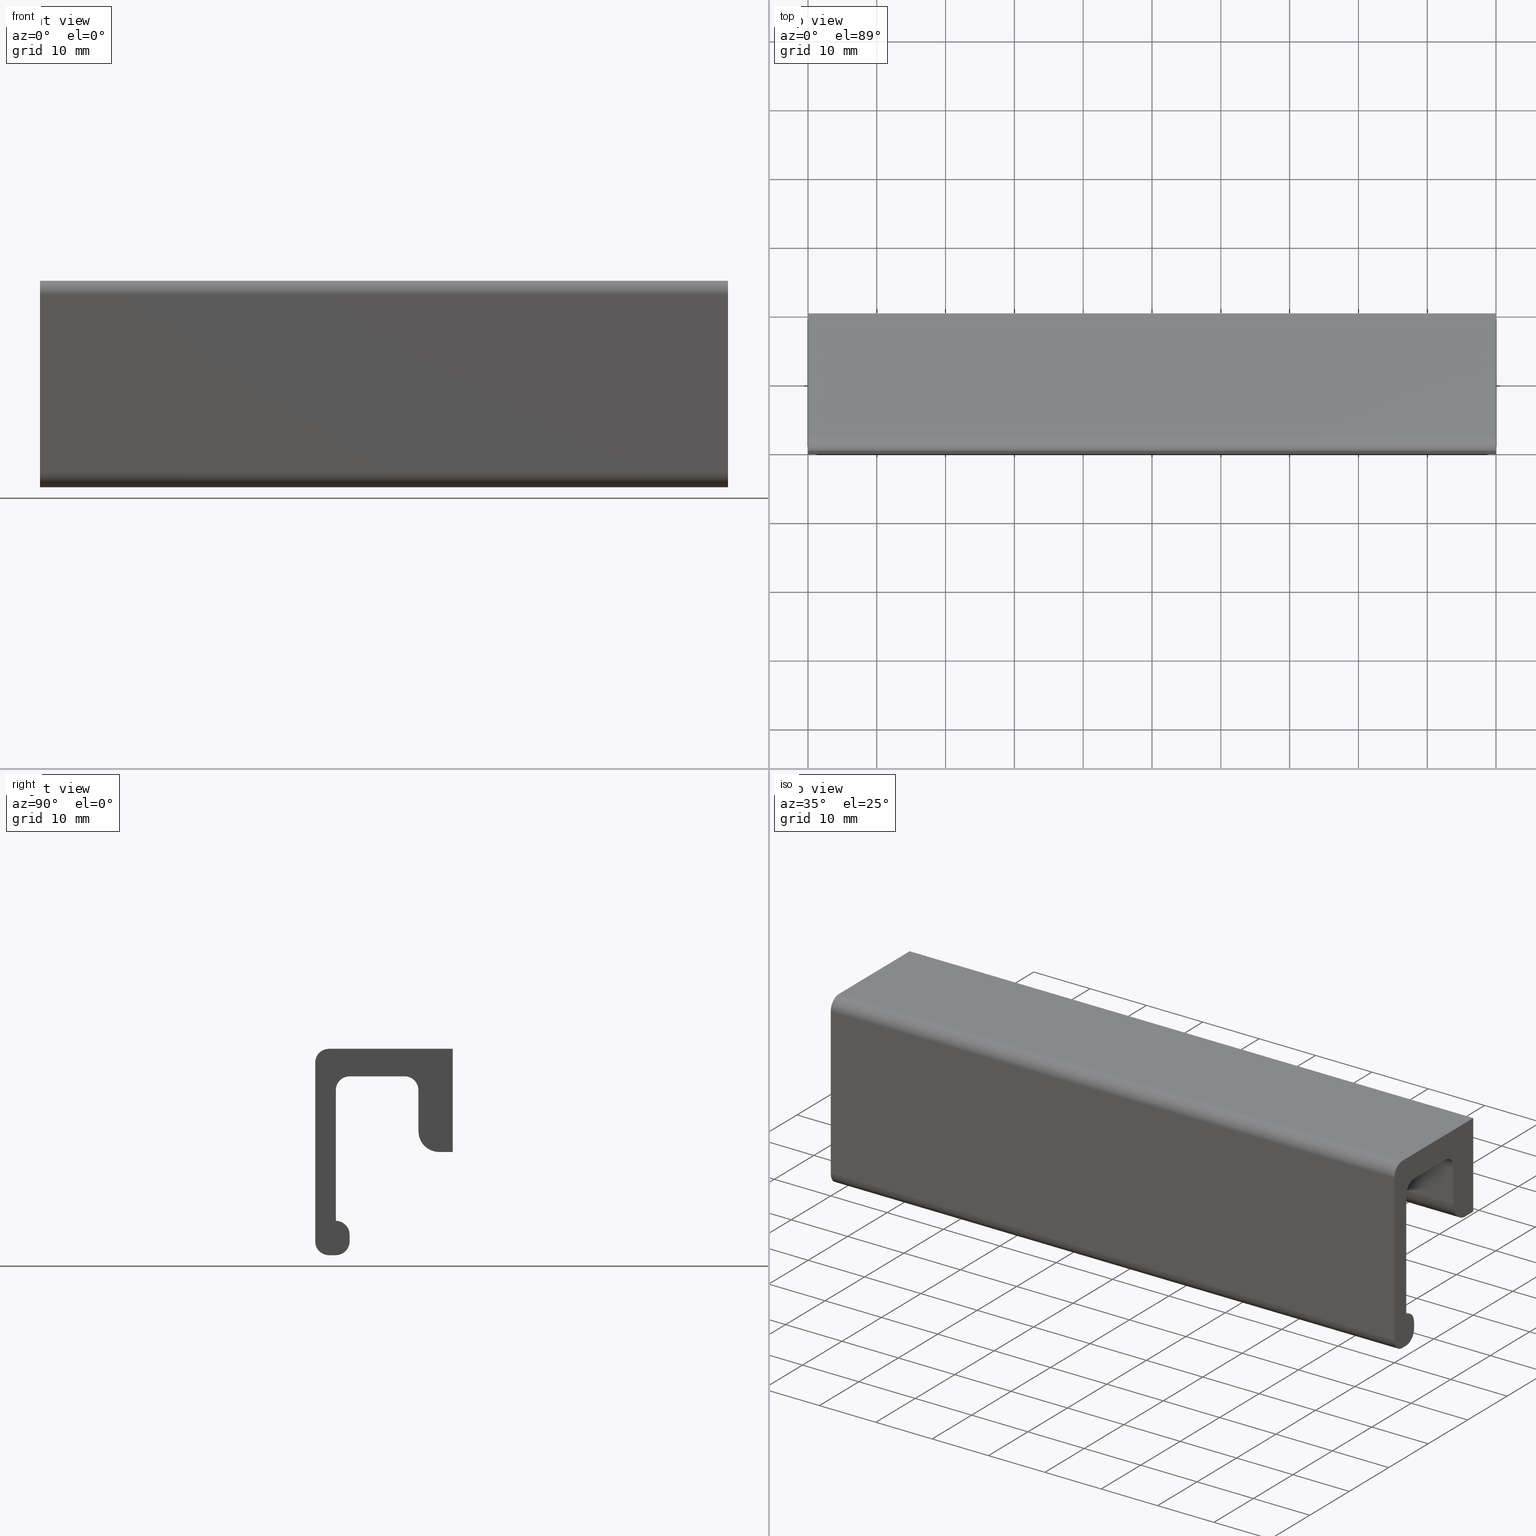
[diagram: canonical four-view strip — front | top / right | iso, engineering-drawing reading convention]
A machine part, canonical four-view strip (front | top / right | iso — engineering-drawing reading convention). The complete STEP part file that produces these views, byte-faithful:
ISO-10303-21;
HEADER;
/****************************************************************
 * Generated by software with PDE/Lib inside                    *
 * PDElib Version 4.4.1-0003, patched  Thursday August 19 11:58 *
 * International Technegroup Inc. (www.iti-oh.com)              *
 ****************************************************************/
FILE_DESCRIPTION((''),'2;1');
FILE_NAME('','2005-10-07T12:31:36',(''),(''),'','CADfix','');
FILE_SCHEMA(('AUTOMOTIVE_DESIGN'));
ENDSEC;
DATA;
#5=APPLICATION_CONTEXT('automotive design');
#6=APPLICATION_PROTOCOL_DEFINITION('Draft International Standard','automotive_design',1998,#5);
#7=PRODUCT_CONTEXT('None',#5,'mechanical');
#8=PRODUCT('pull','','None',(#7));
#9=PRODUCT_RELATED_PRODUCT_CATEGORY('part','description',(#8));
#10=PRODUCT_DEFINITION_FORMATION('None','None',#8);
#11=PRODUCT_DEFINITION_CONTEXT('part definition',#5,'design');
#12=PRODUCT_DEFINITION('None','None',#10,#11);
#18=(NAMED_UNIT(*)PLANE_ANGLE_UNIT()SI_UNIT($,.RADIAN.));
#19=DIMENSIONAL_EXPONENTS(0.0,0.0,0.0,0.0,0.0,0.0,0.0);
#20=PLANE_ANGLE_MEASURE_WITH_UNIT(PLANE_ANGLE_MEASURE(0.017453292500000),#18);
#24=(CONVERSION_BASED_UNIT('DEGREE',#20)NAMED_UNIT(#19)PLANE_ANGLE_UNIT());
#28=(NAMED_UNIT(*)SI_UNIT($,.STERADIAN.)SOLID_ANGLE_UNIT());
#32=(LENGTH_UNIT()NAMED_UNIT(*)SI_UNIT(.MILLI.,.METRE.));
#34=UNCERTAINTY_MEASURE_WITH_UNIT(LENGTH_MEASURE(0.001000000000000),#32,'DISTANCE_ACCURACY_VALUE','');
#36=(GEOMETRIC_REPRESENTATION_CONTEXT(3)GLOBAL_UNCERTAINTY_ASSIGNED_CONTEXT((#34))GLOBAL_UNIT_ASSIGNED_CONTEXT((#24,#28,#32))REPRESENTATION_CONTEXT('None','None'));
#37=AXIS2_PLACEMENT_3D('',#38,#39,#40);
#38=CARTESIAN_POINT('',(0.0,0.0,0.0));
#39=DIRECTION('',(0.0,0.0,1.0));
#40=DIRECTION('',(1.0,0.0,0.0));
#41=ADVANCED_BREP_SHAPE_REPRESENTATION('',(#37,#1104),#36);
#42=PRODUCT_DEFINITION_SHAPE('','',#12);
#43=SHAPE_DEFINITION_REPRESENTATION(#42,#41);
#44=CARTESIAN_POINT('',(17.507706665667179,-5.125000000000124,-8.803852260680387));
#45=CARTESIAN_POINT('',(17.703854404986789,-5.125000000000124,-6.311558926347567));
#46=CARTESIAN_POINT('',(20.196147739319610,-5.125000000000124,-6.507706665667181));
#47=CARTESIAN_POINT('',(22.688441073652434,-5.125000000000124,-6.703854404986793));
#48=CARTESIAN_POINT('',(22.492293334332821,-5.125000000000124,-9.196147739319613));
#49=CARTESIAN_POINT('',(17.507706665667179,0.128125000000003,-8.803852260680387));
#50=CARTESIAN_POINT('',(17.703854404986789,0.128125000000003,-6.311558926347567));
#51=CARTESIAN_POINT('',(20.196147739319610,0.128125000000003,-6.507706665667181));
#52=CARTESIAN_POINT('',(22.688441073652434,0.128125000000003,-6.703854404986793));
#53=CARTESIAN_POINT('',(22.492293334332821,0.128125000000003,-9.196147739319613));
#61=(BOUNDED_SURFACE()B_SPLINE_SURFACE(2,1,((#44,#49),(#45,#50),(#46,#51),(#47,#52),(#48,#53)),.UNSPECIFIED.,.F.,.F.,.U.)B_SPLINE_SURFACE_WITH_KNOTS((3,2,3),(2,2),(0.0,4.142135623730949,8.284271247461899),(0.0,5.253125000000129),.UNSPECIFIED.)GEOMETRIC_REPRESENTATION_ITEM()RATIONAL_B_SPLINE_SURFACE(((1.0,1.0),(0.707106781186548,0.707106781186548),(1.0,1.0),(0.707106781186548,0.707106781186548),(1.0,1.0)))REPRESENTATION_ITEM('')SURFACE());
#62=CARTESIAN_POINT('',(20.0,0.0,-6.499999999999999));
#63=VERTEX_POINT('',#62);
#64=CARTESIAN_POINT('',(17.507706665690229,-2.220446E-016,-8.803852260387494));
#65=VERTEX_POINT('',#64);
#66=CARTESIAN_POINT('',(20.0,0.0,-6.499999999999999));
#67=CARTESIAN_POINT('',(17.689023771399334,0.0,-6.499999999999999));
#68=CARTESIAN_POINT('',(17.507706665690232,-2.220446E-016,-8.803852260387494));
#76=(BOUNDED_CURVE()B_SPLINE_CURVE(2,(#66,#67,#68),.UNSPECIFIED.,.F.,.U.)B_SPLINE_CURVE_WITH_KNOTS((3,3),(0.0,0.236331300592475),.UNSPECIFIED.)CURVE()GEOMETRIC_REPRESENTATION_ITEM()RATIONAL_B_SPLINE_CURVE((1.0,0.723120658652401,0.969723356087730))REPRESENTATION_ITEM(''));
#77=EDGE_CURVE('',#63,#65,#76,.T.);
#78=ORIENTED_EDGE('',*,*,#77,.F.);
#79=CARTESIAN_POINT('',(22.492293334309771,-2.220446E-016,-9.196147739612508));
#80=VERTEX_POINT('',#79);
#81=CARTESIAN_POINT('',(22.492293334309768,-2.220446E-016,-9.196147739612508));
#82=CARTESIAN_POINT('',(22.500000000000004,0.0,-9.098225267813428));
#83=CARTESIAN_POINT('',(22.500000000000000,0.0,-9.0));
#84=CARTESIAN_POINT('',(22.500000000000000,0.0,-6.499999999999999));
#85=CARTESIAN_POINT('',(20.0,0.0,-6.499999999999999));
#93=(BOUNDED_CURVE()B_SPLINE_CURVE(2,(#81,#82,#83,#84,#85),.UNSPECIFIED.,.F.,.U.)B_SPLINE_CURVE_WITH_KNOTS((3,2,3),(0.736331300592475,0.750000000000000,1.0),.UNSPECIFIED.)CURVE()GEOMETRIC_REPRESENTATION_ITEM()RATIONAL_B_SPLINE_CURVE((0.969723356087730,0.983986122534146,1.0,0.707106781186548,1.0))REPRESENTATION_ITEM(''));
#94=EDGE_CURVE('',#80,#63,#93,.T.);
#95=ORIENTED_EDGE('',*,*,#94,.F.);
#96=CARTESIAN_POINT('',(22.492293334309771,-5.000000000000120,-9.196147739612506));
#97=VERTEX_POINT('',#96);
#98=CARTESIAN_POINT('',(22.492293334309771,-5.000000000000120,-9.196147739612506));
#99=CARTESIAN_POINT('',(22.492293334309771,-2.220446E-016,-9.196147739612508));
#100=QUASI_UNIFORM_CURVE('',1,(#98,#99),.UNSPECIFIED.,.F.,.U.);
#101=EDGE_CURVE('',#97,#80,#100,.T.);
#102=ORIENTED_EDGE('',*,*,#101,.F.);
#103=CARTESIAN_POINT('',(20.0,-5.000000000000120,-6.499999999999999));
#104=VERTEX_POINT('',#103);
#105=CARTESIAN_POINT('',(22.492293334309771,-5.000000000000120,-9.196147739612506));
#106=CARTESIAN_POINT('',(22.500000000000000,-5.000000000000120,-9.098225267813426));
#107=CARTESIAN_POINT('',(22.500000000000000,-5.000000000000120,-9.0));
#108=CARTESIAN_POINT('',(22.500000000000000,-5.000000000000121,-6.499999999999999));
#109=CARTESIAN_POINT('',(20.0,-5.000000000000120,-6.499999999999999));
#117=(BOUNDED_CURVE()B_SPLINE_CURVE(2,(#105,#106,#107,#108,#109),.UNSPECIFIED.,.F.,.U.)B_SPLINE_CURVE_WITH_KNOTS((3,2,3),(0.736331300592475,0.750000000000000,1.0),.UNSPECIFIED.)CURVE()GEOMETRIC_REPRESENTATION_ITEM()RATIONAL_B_SPLINE_CURVE((0.969723356087730,0.983986122534146,1.0,0.707106781186548,1.0))REPRESENTATION_ITEM(''));
#118=EDGE_CURVE('',#97,#104,#117,.T.);
#119=ORIENTED_EDGE('',*,*,#118,.T.);
#120=CARTESIAN_POINT('',(17.507706665690240,-5.000000000000120,-8.803852260387494));
#121=VERTEX_POINT('',#120);
#122=CARTESIAN_POINT('',(20.0,-5.000000000000120,-6.499999999999999));
#123=CARTESIAN_POINT('',(17.689023771399341,-5.000000000000122,-6.499999999999999));
#124=CARTESIAN_POINT('',(17.507706665690236,-5.000000000000120,-8.803852260387494));
#132=(BOUNDED_CURVE()B_SPLINE_CURVE(2,(#122,#123,#124),.UNSPECIFIED.,.F.,.U.)B_SPLINE_CURVE_WITH_KNOTS((3,3),(0.0,0.236331300592475),.UNSPECIFIED.)CURVE()GEOMETRIC_REPRESENTATION_ITEM()RATIONAL_B_SPLINE_CURVE((1.0,0.723120658652401,0.969723356087730))REPRESENTATION_ITEM(''));
#133=EDGE_CURVE('',#104,#121,#132,.T.);
#134=ORIENTED_EDGE('',*,*,#133,.T.);
#135=CARTESIAN_POINT('',(17.507706665690240,-5.000000000000120,-8.803852260387494));
#136=CARTESIAN_POINT('',(17.507706665690229,-2.220446E-016,-8.803852260387494));
#137=QUASI_UNIFORM_CURVE('',1,(#135,#136),.UNSPECIFIED.,.F.,.U.);
#138=EDGE_CURVE('',#121,#65,#137,.T.);
#139=ORIENTED_EDGE('',*,*,#138,.T.);
#140=EDGE_LOOP('',(#78,#95,#102,#119,#134,#139));
#141=FACE_OUTER_BOUND('',#140,.T.);
#142=ADVANCED_FACE('',(#141),#61,.F.);
#143=CARTESIAN_POINT('',(22.492293334332821,-5.125000000000124,-9.196147739319613));
#144=CARTESIAN_POINT('',(22.296145595013208,-5.125000000000124,-11.688441073652434));
#145=CARTESIAN_POINT('',(19.803852260680390,-5.125000000000124,-11.492293334332819));
#146=CARTESIAN_POINT('',(17.311558926347576,-5.125000000000124,-11.296145595013206));
#147=CARTESIAN_POINT('',(17.507706665667179,-5.125000000000124,-8.803852260680387));
#148=CARTESIAN_POINT('',(22.492293334332821,0.128125000000003,-9.196147739319613));
#149=CARTESIAN_POINT('',(22.296145595013208,0.128125000000003,-11.688441073652434));
#150=CARTESIAN_POINT('',(19.803852260680390,0.128125000000003,-11.492293334332819));
#151=CARTESIAN_POINT('',(17.311558926347576,0.128125000000003,-11.296145595013206));
#152=CARTESIAN_POINT('',(17.507706665667179,0.128125000000003,-8.803852260680387));
#160=(BOUNDED_SURFACE()B_SPLINE_SURFACE(2,1,((#143,#148),(#144,#149),(#145,#150),(#146,#151),(#147,#152)),.UNSPECIFIED.,.F.,.F.,.U.)B_SPLINE_SURFACE_WITH_KNOTS((3,2,3),(2,2),(0.0,4.142135623730953,8.284271247461906),(0.0,5.253125000000129),.UNSPECIFIED.)GEOMETRIC_REPRESENTATION_ITEM()RATIONAL_B_SPLINE_SURFACE(((1.0,1.0),(0.707106781186548,0.707106781186548),(1.0,1.0),(0.707106781186548,0.707106781186548),(1.0,1.0)))REPRESENTATION_ITEM('')SURFACE());
#161=CARTESIAN_POINT('',(20.0,0.0,-11.500000000000000));
#162=VERTEX_POINT('',#161);
#163=CARTESIAN_POINT('',(17.507706665690236,-2.220446E-016,-8.803852260387494));
#164=CARTESIAN_POINT('',(17.500000000000000,0.0,-8.901774732186572));
#165=CARTESIAN_POINT('',(17.500000000000000,0.0,-9.0));
#166=CARTESIAN_POINT('',(17.499999999999996,0.0,-11.500000000000000));
#167=CARTESIAN_POINT('',(20.0,0.0,-11.500000000000000));
#175=(BOUNDED_CURVE()B_SPLINE_CURVE(2,(#163,#164,#165,#166,#167),.UNSPECIFIED.,.F.,.U.)B_SPLINE_CURVE_WITH_KNOTS((3,2,3),(0.236331300592475,0.250000000000000,0.500000000000000),.UNSPECIFIED.)CURVE()GEOMETRIC_REPRESENTATION_ITEM()RATIONAL_B_SPLINE_CURVE((0.969723356087730,0.983986122534146,1.0,0.707106781186548,1.0))REPRESENTATION_ITEM(''));
#176=EDGE_CURVE('',#65,#162,#175,.T.);
#177=ORIENTED_EDGE('',*,*,#176,.F.);
#178=ORIENTED_EDGE('',*,*,#138,.F.);
#179=CARTESIAN_POINT('',(20.0,-5.000000000000120,-11.500000000000000));
#180=VERTEX_POINT('',#179);
#181=CARTESIAN_POINT('',(17.507706665690232,-5.000000000000120,-8.803852260387494));
#182=CARTESIAN_POINT('',(17.500000000000004,-5.000000000000121,-8.901774732186572));
#183=CARTESIAN_POINT('',(17.500000000000000,-5.000000000000120,-9.0));
#184=CARTESIAN_POINT('',(17.499999999999996,-5.000000000000121,-11.500000000000000));
#185=CARTESIAN_POINT('',(20.0,-5.000000000000120,-11.500000000000000));
#193=(BOUNDED_CURVE()B_SPLINE_CURVE(2,(#181,#182,#183,#184,#185),.UNSPECIFIED.,.F.,.U.)B_SPLINE_CURVE_WITH_KNOTS((3,2,3),(0.236331300592475,0.250000000000000,0.500000000000000),.UNSPECIFIED.)CURVE()GEOMETRIC_REPRESENTATION_ITEM()RATIONAL_B_SPLINE_CURVE((0.969723356087730,0.983986122534146,1.0,0.707106781186548,1.0))REPRESENTATION_ITEM(''));
#194=EDGE_CURVE('',#121,#180,#193,.T.);
#195=ORIENTED_EDGE('',*,*,#194,.T.);
#196=CARTESIAN_POINT('',(20.0,-5.000000000000120,-11.500000000000000));
#197=CARTESIAN_POINT('',(22.310976228600680,-5.000000000000121,-11.499999999999998));
#198=CARTESIAN_POINT('',(22.492293334309764,-5.000000000000120,-9.196147739612506));
#206=(BOUNDED_CURVE()B_SPLINE_CURVE(2,(#196,#197,#198),.UNSPECIFIED.,.F.,.U.)B_SPLINE_CURVE_WITH_KNOTS((3,3),(0.500000000000000,0.736331300592476),.UNSPECIFIED.)CURVE()GEOMETRIC_REPRESENTATION_ITEM()RATIONAL_B_SPLINE_CURVE((1.0,0.723120658652400,0.969723356087732))REPRESENTATION_ITEM(''));
#207=EDGE_CURVE('',#180,#97,#206,.T.);
#208=ORIENTED_EDGE('',*,*,#207,.T.);
#209=ORIENTED_EDGE('',*,*,#101,.T.);
#210=CARTESIAN_POINT('',(20.0,0.0,-11.500000000000000));
#211=CARTESIAN_POINT('',(22.310976228600680,0.0,-11.499999999999998));
#212=CARTESIAN_POINT('',(22.492293334309764,-2.220446E-016,-9.196147739612508));
#220=(BOUNDED_CURVE()B_SPLINE_CURVE(2,(#210,#211,#212),.UNSPECIFIED.,.F.,.U.)B_SPLINE_CURVE_WITH_KNOTS((3,3),(0.500000000000000,0.736331300592476),.UNSPECIFIED.)CURVE()GEOMETRIC_REPRESENTATION_ITEM()RATIONAL_B_SPLINE_CURVE((1.0,0.723120658652400,0.969723356087732))REPRESENTATION_ITEM(''));
#221=EDGE_CURVE('',#162,#80,#220,.T.);
#222=ORIENTED_EDGE('',*,*,#221,.F.);
#223=EDGE_LOOP('',(#177,#178,#195,#208,#209,#222));
#224=FACE_OUTER_BOUND('',#223,.T.);
#225=ADVANCED_FACE('',(#224),#160,.F.);
#226=CARTESIAN_POINT('',(77.507706665667186,-5.125000000000124,-8.803852260680387));
#227=CARTESIAN_POINT('',(77.703854404986799,-5.125000000000124,-6.311558926347567));
#228=CARTESIAN_POINT('',(80.196147739319613,-5.125000000000124,-6.507706665667181));
#229=CARTESIAN_POINT('',(82.688441073652427,-5.125000000000124,-6.703854404986793));
#230=CARTESIAN_POINT('',(82.492293334332814,-5.125000000000124,-9.196147739319613));
#231=CARTESIAN_POINT('',(77.507706665667186,0.128125000000003,-8.803852260680387));
#232=CARTESIAN_POINT('',(77.703854404986799,0.128125000000003,-6.311558926347567));
#233=CARTESIAN_POINT('',(80.196147739319613,0.128125000000003,-6.507706665667181));
#234=CARTESIAN_POINT('',(82.688441073652427,0.128125000000003,-6.703854404986793));
#235=CARTESIAN_POINT('',(82.492293334332814,0.128125000000003,-9.196147739319613));
#243=(BOUNDED_SURFACE()B_SPLINE_SURFACE(2,1,((#226,#231),(#227,#232),(#228,#233),(#229,#234),(#230,#235)),.UNSPECIFIED.,.F.,.F.,.U.)B_SPLINE_SURFACE_WITH_KNOTS((3,2,3),(2,2),(0.0,4.142135623730946,8.284271247461891),(0.0,5.253125000000129),.UNSPECIFIED.)GEOMETRIC_REPRESENTATION_ITEM()RATIONAL_B_SPLINE_SURFACE(((1.0,1.0),(0.707106781186548,0.707106781186548),(1.0,1.0),(0.707106781186548,0.707106781186548),(1.0,1.0)))REPRESENTATION_ITEM('')SURFACE());
#244=CARTESIAN_POINT('',(80.0,0.0,-6.499999999999999));
#245=VERTEX_POINT('',#244);
#246=CARTESIAN_POINT('',(77.507706665690236,-2.220446E-016,-8.803852260387492));
#247=VERTEX_POINT('',#246);
#248=CARTESIAN_POINT('',(80.0,0.0,-6.499999999999999));
#249=CARTESIAN_POINT('',(77.689023771399334,0.0,-6.499999999999998));
#250=CARTESIAN_POINT('',(77.507706665690236,-2.220446E-016,-8.803852260387492));
#258=(BOUNDED_CURVE()B_SPLINE_CURVE(2,(#248,#249,#250),.UNSPECIFIED.,.F.,.U.)B_SPLINE_CURVE_WITH_KNOTS((3,3),(0.0,0.236331300592475),.UNSPECIFIED.)CURVE()GEOMETRIC_REPRESENTATION_ITEM()RATIONAL_B_SPLINE_CURVE((1.0,0.723120658652402,0.969723356087730))REPRESENTATION_ITEM(''));
#259=EDGE_CURVE('',#245,#247,#258,.T.);
#260=ORIENTED_EDGE('',*,*,#259,.F.);
#261=CARTESIAN_POINT('',(82.492293334309764,-2.220446E-016,-9.196147739612508));
#262=VERTEX_POINT('',#261);
#263=CARTESIAN_POINT('',(82.492293334309764,-2.220446E-016,-9.196147739612508));
#264=CARTESIAN_POINT('',(82.500000000000000,0.0,-9.098225267813429));
#265=CARTESIAN_POINT('',(82.500000000000000,0.0,-9.0));
#266=CARTESIAN_POINT('',(82.500000000000000,0.0,-6.499999999999999));
#267=CARTESIAN_POINT('',(80.0,0.0,-6.499999999999999));
#275=(BOUNDED_CURVE()B_SPLINE_CURVE(2,(#263,#264,#265,#266,#267),.UNSPECIFIED.,.F.,.U.)B_SPLINE_CURVE_WITH_KNOTS((3,2,3),(0.736331300592475,0.750000000000000,1.0),.UNSPECIFIED.)CURVE()GEOMETRIC_REPRESENTATION_ITEM()RATIONAL_B_SPLINE_CURVE((0.969723356087730,0.983986122534146,1.0,0.707106781186548,1.0))REPRESENTATION_ITEM(''));
#276=EDGE_CURVE('',#262,#245,#275,.T.);
#277=ORIENTED_EDGE('',*,*,#276,.F.);
#278=CARTESIAN_POINT('',(82.492293334309764,-5.000000000000120,-9.196147739612506));
#279=VERTEX_POINT('',#278);
#280=CARTESIAN_POINT('',(82.492293334309764,-5.000000000000120,-9.196147739612506));
#281=CARTESIAN_POINT('',(82.492293334309764,-2.220446E-016,-9.196147739612508));
#282=QUASI_UNIFORM_CURVE('',1,(#280,#281),.UNSPECIFIED.,.F.,.U.);
#283=EDGE_CURVE('',#279,#262,#282,.T.);
#284=ORIENTED_EDGE('',*,*,#283,.F.);
#285=CARTESIAN_POINT('',(80.0,-5.000000000000120,-6.499999999999999));
#286=VERTEX_POINT('',#285);
#287=CARTESIAN_POINT('',(82.492293334309764,-5.000000000000120,-9.196147739612506));
#288=CARTESIAN_POINT('',(82.500000000000000,-5.000000000000120,-9.098225267813426));
#289=CARTESIAN_POINT('',(82.500000000000000,-5.000000000000120,-9.0));
#290=CARTESIAN_POINT('',(82.500000000000000,-5.000000000000121,-6.499999999999999));
#291=CARTESIAN_POINT('',(80.0,-5.000000000000120,-6.499999999999999));
#299=(BOUNDED_CURVE()B_SPLINE_CURVE(2,(#287,#288,#289,#290,#291),.UNSPECIFIED.,.F.,.U.)B_SPLINE_CURVE_WITH_KNOTS((3,2,3),(0.736331300592475,0.750000000000000,1.0),.UNSPECIFIED.)CURVE()GEOMETRIC_REPRESENTATION_ITEM()RATIONAL_B_SPLINE_CURVE((0.969723356087730,0.983986122534146,1.0,0.707106781186548,1.0))REPRESENTATION_ITEM(''));
#300=EDGE_CURVE('',#279,#286,#299,.T.);
#301=ORIENTED_EDGE('',*,*,#300,.T.);
#302=CARTESIAN_POINT('',(77.507706665690222,-5.000000000000120,-8.803852260387494));
#303=VERTEX_POINT('',#302);
#304=CARTESIAN_POINT('',(80.0,-5.000000000000120,-6.499999999999999));
#305=CARTESIAN_POINT('',(77.689023771399320,-5.000000000000120,-6.499999999999999));
#306=CARTESIAN_POINT('',(77.507706665690222,-5.000000000000120,-8.803852260387494));
#314=(BOUNDED_CURVE()B_SPLINE_CURVE(2,(#304,#305,#306),.UNSPECIFIED.,.F.,.U.)B_SPLINE_CURVE_WITH_KNOTS((3,3),(0.0,0.236331300592475),.UNSPECIFIED.)CURVE()GEOMETRIC_REPRESENTATION_ITEM()RATIONAL_B_SPLINE_CURVE((1.0,0.723120658652401,0.969723356087730))REPRESENTATION_ITEM(''));
#315=EDGE_CURVE('',#286,#303,#314,.T.);
#316=ORIENTED_EDGE('',*,*,#315,.T.);
#317=CARTESIAN_POINT('',(77.507706665690222,-5.000000000000120,-8.803852260387494));
#318=CARTESIAN_POINT('',(77.507706665690236,-2.220446E-016,-8.803852260387492));
#319=QUASI_UNIFORM_CURVE('',1,(#317,#318),.UNSPECIFIED.,.F.,.U.);
#320=EDGE_CURVE('',#303,#247,#319,.T.);
#321=ORIENTED_EDGE('',*,*,#320,.T.);
#322=EDGE_LOOP('',(#260,#277,#284,#301,#316,#321));
#323=FACE_OUTER_BOUND('',#322,.T.);
#324=ADVANCED_FACE('',(#323),#243,.F.);
#325=CARTESIAN_POINT('',(82.492293334332814,-5.125000000000124,-9.196147739319613));
#326=CARTESIAN_POINT('',(82.296145595013201,-5.125000000000124,-11.688441073652434));
#327=CARTESIAN_POINT('',(79.803852260680387,-5.125000000000124,-11.492293334332819));
#328=CARTESIAN_POINT('',(77.311558926347573,-5.125000000000124,-11.296145595013206));
#329=CARTESIAN_POINT('',(77.507706665667186,-5.125000000000124,-8.803852260680387));
#330=CARTESIAN_POINT('',(82.492293334332814,0.128125000000003,-9.196147739319613));
#331=CARTESIAN_POINT('',(82.296145595013201,0.128125000000003,-11.688441073652434));
#332=CARTESIAN_POINT('',(79.803852260680387,0.128125000000003,-11.492293334332819));
#333=CARTESIAN_POINT('',(77.311558926347573,0.128125000000003,-11.296145595013206));
#334=CARTESIAN_POINT('',(77.507706665667186,0.128125000000003,-8.803852260680387));
#342=(BOUNDED_SURFACE()B_SPLINE_SURFACE(2,1,((#325,#330),(#326,#331),(#327,#332),(#328,#333),(#329,#334)),.UNSPECIFIED.,.F.,.F.,.U.)B_SPLINE_SURFACE_WITH_KNOTS((3,2,3),(2,2),(0.0,4.142135623730948,8.284271247461895),(0.0,5.253125000000129),.UNSPECIFIED.)GEOMETRIC_REPRESENTATION_ITEM()RATIONAL_B_SPLINE_SURFACE(((1.0,1.0),(0.707106781186548,0.707106781186548),(1.0,1.0),(0.707106781186548,0.707106781186548),(1.0,1.0)))REPRESENTATION_ITEM('')SURFACE());
#343=CARTESIAN_POINT('',(80.0,0.0,-11.500000000000000));
#344=VERTEX_POINT('',#343);
#345=CARTESIAN_POINT('',(77.507706665690236,-2.220446E-016,-8.803852260387492));
#346=CARTESIAN_POINT('',(77.500000000000000,0.0,-8.901774732186572));
#347=CARTESIAN_POINT('',(77.500000000000000,0.0,-9.0));
#348=CARTESIAN_POINT('',(77.500000000000014,0.0,-11.500000000000000));
#349=CARTESIAN_POINT('',(80.0,0.0,-11.500000000000000));
#357=(BOUNDED_CURVE()B_SPLINE_CURVE(2,(#345,#346,#347,#348,#349),.UNSPECIFIED.,.F.,.U.)B_SPLINE_CURVE_WITH_KNOTS((3,2,3),(0.236331300592475,0.250000000000000,0.500000000000000),.UNSPECIFIED.)CURVE()GEOMETRIC_REPRESENTATION_ITEM()RATIONAL_B_SPLINE_CURVE((0.969723356087730,0.983986122534146,1.0,0.707106781186548,1.0))REPRESENTATION_ITEM(''));
#358=EDGE_CURVE('',#247,#344,#357,.T.);
#359=ORIENTED_EDGE('',*,*,#358,.F.);
#360=ORIENTED_EDGE('',*,*,#320,.F.);
#361=CARTESIAN_POINT('',(80.0,-5.000000000000120,-11.500000000000000));
#362=VERTEX_POINT('',#361);
#363=CARTESIAN_POINT('',(77.507706665690222,-5.000000000000120,-8.803852260387494));
#364=CARTESIAN_POINT('',(77.500000000000000,-5.000000000000120,-8.901774732186572));
#365=CARTESIAN_POINT('',(77.500000000000000,-5.000000000000120,-9.0));
#366=CARTESIAN_POINT('',(77.500000000000014,-5.000000000000121,-11.500000000000000));
#367=CARTESIAN_POINT('',(80.0,-5.000000000000120,-11.500000000000000));
#375=(BOUNDED_CURVE()B_SPLINE_CURVE(2,(#363,#364,#365,#366,#367),.UNSPECIFIED.,.F.,.U.)B_SPLINE_CURVE_WITH_KNOTS((3,2,3),(0.236331300592475,0.250000000000000,0.500000000000000),.UNSPECIFIED.)CURVE()GEOMETRIC_REPRESENTATION_ITEM()RATIONAL_B_SPLINE_CURVE((0.969723356087730,0.983986122534146,1.0,0.707106781186548,1.0))REPRESENTATION_ITEM(''));
#376=EDGE_CURVE('',#303,#362,#375,.T.);
#377=ORIENTED_EDGE('',*,*,#376,.T.);
#378=CARTESIAN_POINT('',(80.0,-5.000000000000120,-11.500000000000000));
#379=CARTESIAN_POINT('',(82.310976228600694,-5.000000000000121,-11.499999999999998));
#380=CARTESIAN_POINT('',(82.492293334309764,-5.000000000000120,-9.196147739612506));
#388=(BOUNDED_CURVE()B_SPLINE_CURVE(2,(#378,#379,#380),.UNSPECIFIED.,.F.,.U.)B_SPLINE_CURVE_WITH_KNOTS((3,3),(0.500000000000000,0.736331300592476),.UNSPECIFIED.)CURVE()GEOMETRIC_REPRESENTATION_ITEM()RATIONAL_B_SPLINE_CURVE((1.0,0.723120658652400,0.969723356087732))REPRESENTATION_ITEM(''));
#389=EDGE_CURVE('',#362,#279,#388,.T.);
#390=ORIENTED_EDGE('',*,*,#389,.T.);
#391=ORIENTED_EDGE('',*,*,#283,.T.);
#392=CARTESIAN_POINT('',(80.0,0.0,-11.500000000000000));
#393=CARTESIAN_POINT('',(82.310976228600694,0.0,-11.499999999999998));
#394=CARTESIAN_POINT('',(82.492293334309764,-2.220446E-016,-9.196147739612508));
#402=(BOUNDED_CURVE()B_SPLINE_CURVE(2,(#392,#393,#394),.UNSPECIFIED.,.F.,.U.)B_SPLINE_CURVE_WITH_KNOTS((3,3),(0.500000000000000,0.736331300592476),.UNSPECIFIED.)CURVE()GEOMETRIC_REPRESENTATION_ITEM()RATIONAL_B_SPLINE_CURVE((1.0,0.723120658652400,0.969723356087732))REPRESENTATION_ITEM(''));
#403=EDGE_CURVE('',#344,#262,#402,.T.);
#404=ORIENTED_EDGE('',*,*,#403,.F.);
#405=EDGE_LOOP('',(#359,#360,#377,#390,#391,#404));
#406=FACE_OUTER_BOUND('',#405,.T.);
#407=ADVANCED_FACE('',(#406),#342,.F.);
#408=CARTESIAN_POINT('',(0.0,-20.998999961236120,1.498499941854179));
#409=CARTESIAN_POINT('',(0.0,0.999000497677920,1.498499941854179));
#410=CARTESIAN_POINT('',(0.0,-20.998999961236120,-31.498500746516889));
#411=CARTESIAN_POINT('',(0.0,0.999000497677920,-31.498500746516889));
#412=B_SPLINE_SURFACE_WITH_KNOTS('',1,1,((#408,#410),(#409,#411)),.UNSPECIFIED.,.F.,.F.,.U.,(2,2),(2,2),(0.0,21.998000458914039),(0.0,32.997000688371067),.UNSPECIFIED.);
#413=CARTESIAN_POINT('',(0.0,-18.0,0.0));
#414=VERTEX_POINT('',#413);
#415=CARTESIAN_POINT('',(0.0,-20.0,-2.0));
#416=VERTEX_POINT('',#415);
#417=CARTESIAN_POINT('',(0.0,-18.0,0.0));
#418=CARTESIAN_POINT('',(0.0,-19.999999999999996,0.0));
#419=CARTESIAN_POINT('',(0.0,-20.0,-2.0));
#427=(BOUNDED_CURVE()B_SPLINE_CURVE(2,(#417,#418,#419),.UNSPECIFIED.,.F.,.U.)CURVE()GEOMETRIC_REPRESENTATION_ITEM()QUASI_UNIFORM_CURVE()RATIONAL_B_SPLINE_CURVE((1.0,0.707106781186548,1.0))REPRESENTATION_ITEM(''));
#428=EDGE_CURVE('',#414,#416,#427,.T.);
#429=ORIENTED_EDGE('',*,*,#428,.F.);
#430=CARTESIAN_POINT('',(0.0,0.0,0.0));
#431=VERTEX_POINT('',#430);
#432=CARTESIAN_POINT('',(0.0,0.0,0.0));
#433=CARTESIAN_POINT('',(0.0,-18.0,0.0));
#434=QUASI_UNIFORM_CURVE('',1,(#432,#433),.UNSPECIFIED.,.F.,.U.);
#435=EDGE_CURVE('',#431,#414,#434,.T.);
#436=ORIENTED_EDGE('',*,*,#435,.F.);
#437=CARTESIAN_POINT('',(0.0,0.0,-15.0));
#438=VERTEX_POINT('',#437);
#439=CARTESIAN_POINT('',(0.0,0.0,-15.0));
#440=CARTESIAN_POINT('',(0.0,0.0,0.0));
#441=QUASI_UNIFORM_CURVE('',1,(#439,#440),.UNSPECIFIED.,.F.,.U.);
#442=EDGE_CURVE('',#438,#431,#441,.T.);
#443=ORIENTED_EDGE('',*,*,#442,.F.);
#444=CARTESIAN_POINT('',(0.0,-2.000000000000085,-15.0));
#445=VERTEX_POINT('',#444);
#446=CARTESIAN_POINT('',(0.0,-2.000000000000085,-15.0));
#447=CARTESIAN_POINT('',(0.0,0.0,-15.0));
#448=QUASI_UNIFORM_CURVE('',1,(#446,#447),.UNSPECIFIED.,.F.,.U.);
#449=EDGE_CURVE('',#445,#438,#448,.T.);
#450=ORIENTED_EDGE('',*,*,#449,.F.);
#451=CARTESIAN_POINT('',(0.0,-5.000000000000091,-12.0));
#452=VERTEX_POINT('',#451);
#453=CARTESIAN_POINT('',(0.0,-5.000000000000085,-12.0));
#454=CARTESIAN_POINT('',(0.0,-5.000000000000085,-14.999999999999995));
#455=CARTESIAN_POINT('',(0.0,-2.000000000000085,-15.0));
#463=(BOUNDED_CURVE()B_SPLINE_CURVE(2,(#453,#454,#455),.UNSPECIFIED.,.F.,.U.)CURVE()GEOMETRIC_REPRESENTATION_ITEM()QUASI_UNIFORM_CURVE()RATIONAL_B_SPLINE_CURVE((1.0,0.707106781186548,1.0))REPRESENTATION_ITEM(''));
#464=EDGE_CURVE('',#452,#445,#463,.T.);
#465=ORIENTED_EDGE('',*,*,#464,.F.);
#466=CARTESIAN_POINT('',(0.0,-5.0,-6.0));
#467=VERTEX_POINT('',#466);
#468=CARTESIAN_POINT('',(0.0,-5.0,-6.0));
#469=CARTESIAN_POINT('',(0.0,-5.000000000000091,-12.0));
#470=QUASI_UNIFORM_CURVE('',1,(#468,#469),.UNSPECIFIED.,.F.,.U.);
#471=EDGE_CURVE('',#467,#452,#470,.T.);
#472=ORIENTED_EDGE('',*,*,#471,.F.);
#473=CARTESIAN_POINT('',(0.0,-7.0,-4.0));
#474=VERTEX_POINT('',#473);
#475=CARTESIAN_POINT('',(0.0,-5.0,-6.0));
#476=CARTESIAN_POINT('',(0.0,-5.000000000000001,-4.000000000000000));
#477=CARTESIAN_POINT('',(0.0,-7.0,-4.0));
#485=(BOUNDED_CURVE()B_SPLINE_CURVE(2,(#475,#476,#477),.UNSPECIFIED.,.F.,.U.)CURVE()GEOMETRIC_REPRESENTATION_ITEM()QUASI_UNIFORM_CURVE()RATIONAL_B_SPLINE_CURVE((1.0,0.707106781186548,1.0))REPRESENTATION_ITEM(''));
#486=EDGE_CURVE('',#467,#474,#485,.T.);
#487=ORIENTED_EDGE('',*,*,#486,.T.);
#488=CARTESIAN_POINT('',(0.0,-15.0,-4.0));
#489=VERTEX_POINT('',#488);
#490=CARTESIAN_POINT('',(0.0,-15.0,-4.0));
#491=CARTESIAN_POINT('',(0.0,-7.0,-4.0));
#492=QUASI_UNIFORM_CURVE('',1,(#490,#491),.UNSPECIFIED.,.F.,.U.);
#493=EDGE_CURVE('',#489,#474,#492,.T.);
#494=ORIENTED_EDGE('',*,*,#493,.F.);
#495=CARTESIAN_POINT('',(0.0,-17.0,-6.0));
#496=VERTEX_POINT('',#495);
#497=CARTESIAN_POINT('',(0.0,-15.0,-4.0));
#498=CARTESIAN_POINT('',(0.0,-17.000000000000004,-4.000000000000000));
#499=CARTESIAN_POINT('',(0.0,-17.0,-6.0));
#507=(BOUNDED_CURVE()B_SPLINE_CURVE(2,(#497,#498,#499),.UNSPECIFIED.,.F.,.U.)CURVE()GEOMETRIC_REPRESENTATION_ITEM()QUASI_UNIFORM_CURVE()RATIONAL_B_SPLINE_CURVE((1.0,0.707106781186548,1.0))REPRESENTATION_ITEM(''));
#508=EDGE_CURVE('',#489,#496,#507,.T.);
#509=ORIENTED_EDGE('',*,*,#508,.T.);
#510=CARTESIAN_POINT('',(0.0,-17.0,-25.0));
#511=VERTEX_POINT('',#510);
#512=CARTESIAN_POINT('',(0.0,-17.0,-25.0));
#513=CARTESIAN_POINT('',(0.0,-17.0,-6.0));
#514=QUASI_UNIFORM_CURVE('',1,(#512,#513),.UNSPECIFIED.,.F.,.U.);
#515=EDGE_CURVE('',#511,#496,#514,.T.);
#516=ORIENTED_EDGE('',*,*,#515,.F.);
#517=CARTESIAN_POINT('',(0.0,-15.0,-27.0));
#518=VERTEX_POINT('',#517);
#519=CARTESIAN_POINT('',(0.0,-15.0,-27.0));
#520=CARTESIAN_POINT('',(0.0,-15.000000000000009,-25.0));
#521=CARTESIAN_POINT('',(0.0,-17.0,-25.0));
#529=(BOUNDED_CURVE()B_SPLINE_CURVE(2,(#519,#520,#521),.UNSPECIFIED.,.F.,.U.)CURVE()GEOMETRIC_REPRESENTATION_ITEM()QUASI_UNIFORM_CURVE()RATIONAL_B_SPLINE_CURVE((1.0,0.707106781186548,1.0))REPRESENTATION_ITEM(''));
#530=EDGE_CURVE('',#518,#511,#529,.T.);
#531=ORIENTED_EDGE('',*,*,#530,.F.);
#532=CARTESIAN_POINT('',(0.0,-15.0,-28.0));
#533=VERTEX_POINT('',#532);
#534=CARTESIAN_POINT('',(0.0,-15.0,-28.0));
#535=CARTESIAN_POINT('',(0.0,-15.0,-27.0));
#536=QUASI_UNIFORM_CURVE('',1,(#534,#535),.UNSPECIFIED.,.F.,.U.);
#537=EDGE_CURVE('',#533,#518,#536,.T.);
#538=ORIENTED_EDGE('',*,*,#537,.F.);
#539=CARTESIAN_POINT('',(0.0,-17.0,-30.0));
#540=VERTEX_POINT('',#539);
#541=CARTESIAN_POINT('',(0.0,-17.0,-30.0));
#542=CARTESIAN_POINT('',(0.0,-15.000000000000009,-30.000000000000004));
#543=CARTESIAN_POINT('',(0.0,-15.0,-28.0));
#551=(BOUNDED_CURVE()B_SPLINE_CURVE(2,(#541,#542,#543),.UNSPECIFIED.,.F.,.U.)CURVE()GEOMETRIC_REPRESENTATION_ITEM()QUASI_UNIFORM_CURVE()RATIONAL_B_SPLINE_CURVE((1.0,0.707106781186548,1.0))REPRESENTATION_ITEM(''));
#552=EDGE_CURVE('',#540,#533,#551,.T.);
#553=ORIENTED_EDGE('',*,*,#552,.F.);
#554=CARTESIAN_POINT('',(0.0,-18.0,-30.0));
#555=VERTEX_POINT('',#554);
#556=CARTESIAN_POINT('',(0.0,-18.0,-30.0));
#557=CARTESIAN_POINT('',(0.0,-17.0,-30.0));
#558=QUASI_UNIFORM_CURVE('',1,(#556,#557),.UNSPECIFIED.,.F.,.U.);
#559=EDGE_CURVE('',#555,#540,#558,.T.);
#560=ORIENTED_EDGE('',*,*,#559,.F.);
#561=CARTESIAN_POINT('',(0.0,-20.0,-28.0));
#562=VERTEX_POINT('',#561);
#563=CARTESIAN_POINT('',(0.0,-20.0,-28.0));
#564=CARTESIAN_POINT('',(0.0,-19.999999999999996,-30.000000000000004));
#565=CARTESIAN_POINT('',(0.0,-18.0,-30.0));
#573=(BOUNDED_CURVE()B_SPLINE_CURVE(2,(#563,#564,#565),.UNSPECIFIED.,.F.,.U.)CURVE()GEOMETRIC_REPRESENTATION_ITEM()QUASI_UNIFORM_CURVE()RATIONAL_B_SPLINE_CURVE((1.0,0.707106781186548,1.0))REPRESENTATION_ITEM(''));
#574=EDGE_CURVE('',#562,#555,#573,.T.);
#575=ORIENTED_EDGE('',*,*,#574,.F.);
#576=CARTESIAN_POINT('',(0.0,-20.0,-2.0));
#577=CARTESIAN_POINT('',(0.0,-20.0,-28.0));
#578=QUASI_UNIFORM_CURVE('',1,(#576,#577),.UNSPECIFIED.,.F.,.U.);
#579=EDGE_CURVE('',#416,#562,#578,.T.);
#580=ORIENTED_EDGE('',*,*,#579,.F.);
#581=EDGE_LOOP('',(#429,#436,#443,#450,#465,#472,#487,#494,#509,#516,#531,#538,#553,#560,#575,#580));
#582=FACE_OUTER_BOUND('',#581,.T.);
#583=ADVANCED_FACE('',(#582),#412,.T.);
#584=CARTESIAN_POINT('',(100.0,-20.998999961236120,1.498499941854179));
#585=CARTESIAN_POINT('',(100.0,0.999000497677920,1.498499941854179));
#586=CARTESIAN_POINT('',(100.0,-20.998999961236120,-31.498500746516889));
#587=CARTESIAN_POINT('',(100.0,0.999000497677920,-31.498500746516889));
#588=B_SPLINE_SURFACE_WITH_KNOTS('',1,1,((#584,#586),(#585,#587)),.UNSPECIFIED.,.F.,.F.,.U.,(2,2),(2,2),(0.0,21.998000458914039),(0.0,32.997000688371067),.UNSPECIFIED.);
#589=CARTESIAN_POINT('',(100.0,-18.0,0.0));
#590=VERTEX_POINT('',#589);
#591=CARTESIAN_POINT('',(100.0,-20.0,-2.0));
#592=VERTEX_POINT('',#591);
#593=CARTESIAN_POINT('',(100.0,-18.0,0.0));
#594=CARTESIAN_POINT('',(100.0,-19.999999999999996,0.0));
#595=CARTESIAN_POINT('',(100.0,-20.0,-2.0));
#603=(BOUNDED_CURVE()B_SPLINE_CURVE(2,(#593,#594,#595),.UNSPECIFIED.,.F.,.U.)CURVE()GEOMETRIC_REPRESENTATION_ITEM()QUASI_UNIFORM_CURVE()RATIONAL_B_SPLINE_CURVE((1.0,0.707106781186548,1.0))REPRESENTATION_ITEM(''));
#604=EDGE_CURVE('',#590,#592,#603,.T.);
#605=ORIENTED_EDGE('',*,*,#604,.T.);
#606=CARTESIAN_POINT('',(100.0,-20.0,-28.0));
#607=VERTEX_POINT('',#606);
#608=CARTESIAN_POINT('',(100.0,-20.0,-2.0));
#609=CARTESIAN_POINT('',(100.0,-20.0,-28.0));
#610=QUASI_UNIFORM_CURVE('',1,(#608,#609),.UNSPECIFIED.,.F.,.U.);
#611=EDGE_CURVE('',#592,#607,#610,.T.);
#612=ORIENTED_EDGE('',*,*,#611,.T.);
#613=CARTESIAN_POINT('',(100.0,-18.0,-30.0));
#614=VERTEX_POINT('',#613);
#615=CARTESIAN_POINT('',(100.0,-20.0,-28.0));
#616=CARTESIAN_POINT('',(100.0,-19.999999999999996,-30.000000000000004));
#617=CARTESIAN_POINT('',(100.0,-18.0,-30.0));
#625=(BOUNDED_CURVE()B_SPLINE_CURVE(2,(#615,#616,#617),.UNSPECIFIED.,.F.,.U.)CURVE()GEOMETRIC_REPRESENTATION_ITEM()QUASI_UNIFORM_CURVE()RATIONAL_B_SPLINE_CURVE((1.0,0.707106781186548,1.0))REPRESENTATION_ITEM(''));
#626=EDGE_CURVE('',#607,#614,#625,.T.);
#627=ORIENTED_EDGE('',*,*,#626,.T.);
#628=CARTESIAN_POINT('',(100.0,-17.0,-30.0));
#629=VERTEX_POINT('',#628);
#630=CARTESIAN_POINT('',(100.0,-18.0,-30.0));
#631=CARTESIAN_POINT('',(100.0,-17.0,-30.0));
#632=QUASI_UNIFORM_CURVE('',1,(#630,#631),.UNSPECIFIED.,.F.,.U.);
#633=EDGE_CURVE('',#614,#629,#632,.T.);
#634=ORIENTED_EDGE('',*,*,#633,.T.);
#635=CARTESIAN_POINT('',(100.0,-15.0,-28.0));
#636=VERTEX_POINT('',#635);
#637=CARTESIAN_POINT('',(100.0,-17.0,-30.0));
#638=CARTESIAN_POINT('',(100.0,-15.000000000000009,-30.000000000000004));
#639=CARTESIAN_POINT('',(100.0,-15.0,-28.0));
#647=(BOUNDED_CURVE()B_SPLINE_CURVE(2,(#637,#638,#639),.UNSPECIFIED.,.F.,.U.)CURVE()GEOMETRIC_REPRESENTATION_ITEM()QUASI_UNIFORM_CURVE()RATIONAL_B_SPLINE_CURVE((1.0,0.707106781186548,1.0))REPRESENTATION_ITEM(''));
#648=EDGE_CURVE('',#629,#636,#647,.T.);
#649=ORIENTED_EDGE('',*,*,#648,.T.);
#650=CARTESIAN_POINT('',(100.0,-15.0,-27.0));
#651=VERTEX_POINT('',#650);
#652=CARTESIAN_POINT('',(100.0,-15.0,-28.0));
#653=CARTESIAN_POINT('',(100.0,-15.0,-27.0));
#654=QUASI_UNIFORM_CURVE('',1,(#652,#653),.UNSPECIFIED.,.F.,.U.);
#655=EDGE_CURVE('',#636,#651,#654,.T.);
#656=ORIENTED_EDGE('',*,*,#655,.T.);
#657=CARTESIAN_POINT('',(100.0,-17.0,-25.0));
#658=VERTEX_POINT('',#657);
#659=CARTESIAN_POINT('',(100.0,-15.0,-27.0));
#660=CARTESIAN_POINT('',(100.0,-15.000000000000009,-25.0));
#661=CARTESIAN_POINT('',(100.0,-17.0,-25.0));
#669=(BOUNDED_CURVE()B_SPLINE_CURVE(2,(#659,#660,#661),.UNSPECIFIED.,.F.,.U.)CURVE()GEOMETRIC_REPRESENTATION_ITEM()QUASI_UNIFORM_CURVE()RATIONAL_B_SPLINE_CURVE((1.0,0.707106781186548,1.0))REPRESENTATION_ITEM(''));
#670=EDGE_CURVE('',#651,#658,#669,.T.);
#671=ORIENTED_EDGE('',*,*,#670,.T.);
#672=CARTESIAN_POINT('',(100.0,-17.0,-6.0));
#673=VERTEX_POINT('',#672);
#674=CARTESIAN_POINT('',(100.0,-17.0,-25.0));
#675=CARTESIAN_POINT('',(100.0,-17.0,-6.0));
#676=QUASI_UNIFORM_CURVE('',1,(#674,#675),.UNSPECIFIED.,.F.,.U.);
#677=EDGE_CURVE('',#658,#673,#676,.T.);
#678=ORIENTED_EDGE('',*,*,#677,.T.);
#679=CARTESIAN_POINT('',(100.0,-15.0,-4.0));
#680=VERTEX_POINT('',#679);
#681=CARTESIAN_POINT('',(100.0,-15.0,-4.0));
#682=CARTESIAN_POINT('',(100.0,-17.000000000000004,-4.000000000000000));
#683=CARTESIAN_POINT('',(100.0,-17.0,-6.0));
#691=(BOUNDED_CURVE()B_SPLINE_CURVE(2,(#681,#682,#683),.UNSPECIFIED.,.F.,.U.)CURVE()GEOMETRIC_REPRESENTATION_ITEM()QUASI_UNIFORM_CURVE()RATIONAL_B_SPLINE_CURVE((1.0,0.707106781186548,1.0))REPRESENTATION_ITEM(''));
#692=EDGE_CURVE('',#680,#673,#691,.T.);
#693=ORIENTED_EDGE('',*,*,#692,.F.);
#694=CARTESIAN_POINT('',(100.0,-7.0,-4.0));
#695=VERTEX_POINT('',#694);
#696=CARTESIAN_POINT('',(100.0,-15.0,-4.0));
#697=CARTESIAN_POINT('',(100.0,-7.0,-4.0));
#698=QUASI_UNIFORM_CURVE('',1,(#696,#697),.UNSPECIFIED.,.F.,.U.);
#699=EDGE_CURVE('',#680,#695,#698,.T.);
#700=ORIENTED_EDGE('',*,*,#699,.T.);
#701=CARTESIAN_POINT('',(100.0,-5.0,-6.0));
#702=VERTEX_POINT('',#701);
#703=CARTESIAN_POINT('',(100.0,-5.0,-6.0));
#704=CARTESIAN_POINT('',(100.0,-5.000000000000001,-4.000000000000000));
#705=CARTESIAN_POINT('',(100.0,-7.0,-4.0));
#713=(BOUNDED_CURVE()B_SPLINE_CURVE(2,(#703,#704,#705),.UNSPECIFIED.,.F.,.U.)CURVE()GEOMETRIC_REPRESENTATION_ITEM()QUASI_UNIFORM_CURVE()RATIONAL_B_SPLINE_CURVE((1.0,0.707106781186548,1.0))REPRESENTATION_ITEM(''));
#714=EDGE_CURVE('',#702,#695,#713,.T.);
#715=ORIENTED_EDGE('',*,*,#714,.F.);
#716=CARTESIAN_POINT('',(100.0,-5.000000000000091,-12.0));
#717=VERTEX_POINT('',#716);
#718=CARTESIAN_POINT('',(100.0,-5.0,-6.0));
#719=CARTESIAN_POINT('',(100.0,-5.000000000000091,-12.0));
#720=QUASI_UNIFORM_CURVE('',1,(#718,#719),.UNSPECIFIED.,.F.,.U.);
#721=EDGE_CURVE('',#702,#717,#720,.T.);
#722=ORIENTED_EDGE('',*,*,#721,.T.);
#723=CARTESIAN_POINT('',(100.0,-2.000000000000085,-15.0));
#724=VERTEX_POINT('',#723);
#725=CARTESIAN_POINT('',(100.0,-5.000000000000085,-12.0));
#726=CARTESIAN_POINT('',(100.0,-5.000000000000085,-14.999999999999995));
#727=CARTESIAN_POINT('',(100.0,-2.000000000000085,-15.0));
#735=(BOUNDED_CURVE()B_SPLINE_CURVE(2,(#725,#726,#727),.UNSPECIFIED.,.F.,.U.)CURVE()GEOMETRIC_REPRESENTATION_ITEM()QUASI_UNIFORM_CURVE()RATIONAL_B_SPLINE_CURVE((1.0,0.707106781186548,1.0))REPRESENTATION_ITEM(''));
#736=EDGE_CURVE('',#717,#724,#735,.T.);
#737=ORIENTED_EDGE('',*,*,#736,.T.);
#738=CARTESIAN_POINT('',(100.0,0.0,-15.0));
#739=VERTEX_POINT('',#738);
#740=CARTESIAN_POINT('',(100.0,-2.000000000000085,-15.0));
#741=CARTESIAN_POINT('',(100.0,0.0,-15.0));
#742=QUASI_UNIFORM_CURVE('',1,(#740,#741),.UNSPECIFIED.,.F.,.U.);
#743=EDGE_CURVE('',#724,#739,#742,.T.);
#744=ORIENTED_EDGE('',*,*,#743,.T.);
#745=CARTESIAN_POINT('',(100.0,0.0,0.0));
#746=VERTEX_POINT('',#745);
#747=CARTESIAN_POINT('',(100.0,0.0,-15.0));
#748=CARTESIAN_POINT('',(100.0,0.0,0.0));
#749=QUASI_UNIFORM_CURVE('',1,(#747,#748),.UNSPECIFIED.,.F.,.U.);
#750=EDGE_CURVE('',#739,#746,#749,.T.);
#751=ORIENTED_EDGE('',*,*,#750,.T.);
#752=CARTESIAN_POINT('',(100.0,0.0,0.0));
#753=CARTESIAN_POINT('',(100.0,-18.0,0.0));
#754=QUASI_UNIFORM_CURVE('',1,(#752,#753),.UNSPECIFIED.,.F.,.U.);
#755=EDGE_CURVE('',#746,#590,#754,.T.);
#756=ORIENTED_EDGE('',*,*,#755,.T.);
#757=EDGE_LOOP('',(#605,#612,#627,#634,#649,#656,#671,#678,#693,#700,#715,#722,#737,#744,#751,#756));
#758=FACE_OUTER_BOUND('',#757,.T.);
#759=ADVANCED_FACE('',(#758),#588,.F.);
#760=CARTESIAN_POINT('',(104.994999806180600,-18.899099965112509,0.0));
#761=CARTESIAN_POINT('',(-4.995002488389611,-18.899099965112509,0.0));
#762=CARTESIAN_POINT('',(104.994999806180600,0.899100447910131,0.0));
#763=CARTESIAN_POINT('',(-4.995002488389611,0.899100447910131,0.0));
#764=B_SPLINE_SURFACE_WITH_KNOTS('',1,1,((#760,#762),(#761,#763)),.UNSPECIFIED.,.F.,.F.,.U.,(2,2),(2,2),(0.0,109.990002294570200),(0.0,19.798200413022641),.UNSPECIFIED.);
#765=ORIENTED_EDGE('',*,*,#435,.T.);
#766=CARTESIAN_POINT('',(100.0,-18.0,0.0));
#767=CARTESIAN_POINT('',(0.0,-18.0,0.0));
#768=QUASI_UNIFORM_CURVE('',1,(#766,#767),.UNSPECIFIED.,.F.,.U.);
#769=EDGE_CURVE('',#590,#414,#768,.T.);
#770=ORIENTED_EDGE('',*,*,#769,.F.);
#771=ORIENTED_EDGE('',*,*,#755,.F.);
#772=CARTESIAN_POINT('',(100.0,0.0,0.0));
#773=CARTESIAN_POINT('',(0.0,0.0,0.0));
#774=QUASI_UNIFORM_CURVE('',1,(#772,#773),.UNSPECIFIED.,.F.,.U.);
#775=EDGE_CURVE('',#746,#431,#774,.T.);
#776=ORIENTED_EDGE('',*,*,#775,.T.);
#777=EDGE_LOOP('',(#765,#770,#771,#776));
#778=FACE_OUTER_BOUND('',#777,.T.);
#779=ADVANCED_FACE('',(#778),#764,.F.);
#780=CARTESIAN_POINT('',(-4.994999806180597,-2.099899996123702,-15.0));
#781=CARTESIAN_POINT('',(104.995002488389600,-2.099899996123702,-15.0));
#782=CARTESIAN_POINT('',(-4.994999806180597,0.099900049767796,-15.0));
#783=CARTESIAN_POINT('',(104.995002488389600,0.099900049767796,-15.0));
#784=B_SPLINE_SURFACE_WITH_KNOTS('',1,1,((#780,#782),(#781,#783)),.UNSPECIFIED.,.F.,.F.,.U.,(2,2),(2,2),(0.0,109.990002294570200),(0.0,2.199800045891498),.UNSPECIFIED.);
#785=ORIENTED_EDGE('',*,*,#449,.T.);
#786=CARTESIAN_POINT('',(100.0,0.0,-15.0));
#787=CARTESIAN_POINT('',(0.0,0.0,-15.0));
#788=QUASI_UNIFORM_CURVE('',1,(#786,#787),.UNSPECIFIED.,.F.,.U.);
#789=EDGE_CURVE('',#739,#438,#788,.T.);
#790=ORIENTED_EDGE('',*,*,#789,.F.);
#791=ORIENTED_EDGE('',*,*,#743,.F.);
#792=CARTESIAN_POINT('',(100.0,-2.000000000000085,-15.0));
#793=CARTESIAN_POINT('',(0.0,-2.000000000000085,-15.0));
#794=QUASI_UNIFORM_CURVE('',1,(#792,#793),.UNSPECIFIED.,.F.,.U.);
#795=EDGE_CURVE('',#724,#445,#794,.T.);
#796=ORIENTED_EDGE('',*,*,#795,.T.);
#797=EDGE_LOOP('',(#785,#790,#791,#796));
#798=FACE_OUTER_BOUND('',#797,.T.);
#799=ADVANCED_FACE('',(#798),#784,.F.);
#800=CARTESIAN_POINT('',(102.500000000000000,-4.998971974926756,-11.921469155076380));
#801=CARTESIAN_POINT('',(-2.562500000000000,-4.998971974926756,-11.921469155076380));
#802=CARTESIAN_POINT('',(102.500000000000010,-5.084673353588059,-15.194272765782362));
#803=CARTESIAN_POINT('',(-2.562500000000000,-5.084673353588059,-15.194272765782362));
#804=CARTESIAN_POINT('',(102.500000000000000,-1.816854381395519,-14.994404395265599));
#805=CARTESIAN_POINT('',(-2.562500000000000,-1.816854381395519,-14.994404395265599));
#813=(BOUNDED_SURFACE()B_SPLINE_SURFACE(1,2,((#800,#802,#804),(#801,#803,#805)),.UNSPECIFIED.,.F.,.F.,.U.)B_SPLINE_SURFACE_WITH_KNOTS((2,2),(3,3),(0.0,105.062500000000000),(0.0,5.280126370702001),.UNSPECIFIED.)GEOMETRIC_REPRESENTATION_ITEM()RATIONAL_B_SPLINE_SURFACE(((1.0,0.675590207615660,1.0),(1.0,0.675590207615660,1.0)))REPRESENTATION_ITEM('')SURFACE());
#814=ORIENTED_EDGE('',*,*,#464,.T.);
#815=ORIENTED_EDGE('',*,*,#795,.F.);
#816=ORIENTED_EDGE('',*,*,#736,.F.);
#817=CARTESIAN_POINT('',(100.0,-5.000000000000091,-12.0));
#818=CARTESIAN_POINT('',(0.0,-5.000000000000091,-12.0));
#819=QUASI_UNIFORM_CURVE('',1,(#817,#818),.UNSPECIFIED.,.F.,.U.);
#820=EDGE_CURVE('',#717,#452,#819,.T.);
#821=ORIENTED_EDGE('',*,*,#820,.T.);
#822=EDGE_LOOP('',(#814,#815,#816,#821));
#823=FACE_OUTER_BOUND('',#822,.T.);
#824=ADVANCED_FACE('',(#823),#813,.T.);
#825=CARTESIAN_POINT('',(102.500000000000000,-5.000685350048887,-6.052353896615749));
#826=CARTESIAN_POINT('',(-2.562500000000000,-5.000685350048887,-6.052353896615749));
#827=CARTESIAN_POINT('',(102.500000000000010,-4.943551097608021,-3.870484822811767));
#828=CARTESIAN_POINT('',(-2.562500000000000,-4.943551097608021,-3.870484822811767));
#829=CARTESIAN_POINT('',(102.500000000000000,-7.122097079069711,-4.003730403156270));
#830=CARTESIAN_POINT('',(-2.562500000000000,-7.122097079069711,-4.003730403156270));
#838=(BOUNDED_SURFACE()B_SPLINE_SURFACE(1,2,((#825,#827,#829),(#826,#828,#830)),.UNSPECIFIED.,.F.,.F.,.U.)B_SPLINE_SURFACE_WITH_KNOTS((2,2),(3,3),(0.0,105.062500000000000),(0.0,3.520084247134662),.UNSPECIFIED.)GEOMETRIC_REPRESENTATION_ITEM()RATIONAL_B_SPLINE_SURFACE(((1.0,0.675590207615660,1.0),(1.0,0.675590207615660,1.0)))REPRESENTATION_ITEM('')SURFACE());
#839=ORIENTED_EDGE('',*,*,#486,.F.);
#840=CARTESIAN_POINT('',(100.0,-5.0,-6.0));
#841=CARTESIAN_POINT('',(0.0,-5.0,-6.0));
#842=QUASI_UNIFORM_CURVE('',1,(#840,#841),.UNSPECIFIED.,.F.,.U.);
#843=EDGE_CURVE('',#702,#467,#842,.T.);
#844=ORIENTED_EDGE('',*,*,#843,.F.);
#845=ORIENTED_EDGE('',*,*,#714,.T.);
#846=CARTESIAN_POINT('',(100.0,-7.0,-4.0));
#847=CARTESIAN_POINT('',(0.0,-7.0,-4.0));
#848=QUASI_UNIFORM_CURVE('',1,(#846,#847),.UNSPECIFIED.,.F.,.U.);
#849=EDGE_CURVE('',#695,#474,#848,.T.);
#850=ORIENTED_EDGE('',*,*,#849,.T.);
#851=EDGE_LOOP('',(#839,#844,#845,#850));
#852=FACE_OUTER_BOUND('',#851,.T.);
#853=ADVANCED_FACE('',(#852),#838,.F.);
#854=CARTESIAN_POINT('',(-4.994999806180597,-6.600400015505551,-4.0));
#855=CARTESIAN_POINT('',(-4.994999806180597,-15.399600199071170,-4.0));
#856=CARTESIAN_POINT('',(104.995002488389600,-6.600400015505551,-4.0));
#857=CARTESIAN_POINT('',(104.995002488389600,-15.399600199071170,-4.0));
#858=B_SPLINE_SURFACE_WITH_KNOTS('',1,1,((#854,#856),(#855,#857)),.UNSPECIFIED.,.F.,.F.,.U.,(2,2),(2,2),(0.0,8.799200183565619),(0.0,109.990002294570200),.UNSPECIFIED.);
#859=ORIENTED_EDGE('',*,*,#493,.T.);
#860=ORIENTED_EDGE('',*,*,#849,.F.);
#861=ORIENTED_EDGE('',*,*,#699,.F.);
#862=CARTESIAN_POINT('',(100.0,-15.0,-4.0));
#863=CARTESIAN_POINT('',(0.0,-15.0,-4.0));
#864=QUASI_UNIFORM_CURVE('',1,(#862,#863),.UNSPECIFIED.,.F.,.U.);
#865=EDGE_CURVE('',#680,#489,#864,.T.);
#866=ORIENTED_EDGE('',*,*,#865,.T.);
#867=EDGE_LOOP('',(#859,#860,#861,#866));
#868=FACE_OUTER_BOUND('',#867,.T.);
#869=ADVANCED_FACE('',(#868),#858,.F.);
#870=CARTESIAN_POINT('',(102.500000000000000,-14.947646103384249,-4.000685350048887));
#871=CARTESIAN_POINT('',(-2.562500000000000,-14.947646103384249,-4.000685350048887));
#872=CARTESIAN_POINT('',(102.499999999999990,-17.149969601109433,-3.943015479667478));
#873=CARTESIAN_POINT('',(-2.562500000000000,-17.149969601109433,-3.943015479667478));
#874=CARTESIAN_POINT('',(102.500000000000040,-16.995048958761622,-6.140640151251969));
#875=CARTESIAN_POINT('',(-2.562500000000000,-16.995048958761622,-6.140640151251969));
#883=(BOUNDED_SURFACE()B_SPLINE_SURFACE(1,2,((#870,#872,#874),(#871,#873,#875)),.UNSPECIFIED.,.F.,.F.,.U.)B_SPLINE_SURFACE_WITH_KNOTS((2,2),(3,3),(0.0,105.062500000000000),(0.0,3.542284688176730),.UNSPECIFIED.)GEOMETRIC_REPRESENTATION_ITEM()RATIONAL_B_SPLINE_SURFACE(((1.0,0.670944223154768,0.996392648609106),(1.0,0.670944223154768,0.996392648609106)))REPRESENTATION_ITEM('')SURFACE());
#884=ORIENTED_EDGE('',*,*,#508,.F.);
#885=ORIENTED_EDGE('',*,*,#865,.F.);
#886=ORIENTED_EDGE('',*,*,#692,.T.);
#887=CARTESIAN_POINT('',(100.0,-17.0,-6.0));
#888=CARTESIAN_POINT('',(0.0,-17.0,-6.0));
#889=QUASI_UNIFORM_CURVE('',1,(#887,#888),.UNSPECIFIED.,.F.,.U.);
#890=EDGE_CURVE('',#673,#496,#889,.T.);
#891=ORIENTED_EDGE('',*,*,#890,.T.);
#892=EDGE_LOOP('',(#884,#885,#886,#891));
#893=FACE_OUTER_BOUND('',#892,.T.);
#894=ADVANCED_FACE('',(#893),#883,.F.);
#895=CARTESIAN_POINT('',(-4.994999806180597,-17.0,-5.050950036825688));
#896=CARTESIAN_POINT('',(-4.994999806180597,-17.0,-25.949050472794021));
#897=CARTESIAN_POINT('',(104.995002488389600,-17.0,-5.050950036825688));
#898=CARTESIAN_POINT('',(104.995002488389600,-17.0,-25.949050472794021));
#899=B_SPLINE_SURFACE_WITH_KNOTS('',1,1,((#895,#897),(#896,#898)),.UNSPECIFIED.,.F.,.F.,.U.,(2,2),(2,2),(0.0,20.898100435968342),(0.0,109.990002294570200),.UNSPECIFIED.);
#900=ORIENTED_EDGE('',*,*,#515,.T.);
#901=ORIENTED_EDGE('',*,*,#890,.F.);
#902=ORIENTED_EDGE('',*,*,#677,.F.);
#903=CARTESIAN_POINT('',(100.0,-17.0,-25.0));
#904=CARTESIAN_POINT('',(0.0,-17.0,-25.0));
#905=QUASI_UNIFORM_CURVE('',1,(#903,#904),.UNSPECIFIED.,.F.,.U.);
#906=EDGE_CURVE('',#658,#511,#905,.T.);
#907=ORIENTED_EDGE('',*,*,#906,.T.);
#908=EDGE_LOOP('',(#900,#901,#902,#907));
#909=FACE_OUTER_BOUND('',#908,.T.);
#910=ADVANCED_FACE('',(#909),#899,.F.);
#911=CARTESIAN_POINT('',(102.500000000000000,-15.000076153871660,-27.017453070996751));
#912=CARTESIAN_POINT('',(-2.562500000000000,-15.000076153871660,-27.017453070996751));
#913=CARTESIAN_POINT('',(102.500000000000030,-14.981360026640903,-24.872797315976506));
#914=CARTESIAN_POINT('',(-2.562500000000000,-14.981360026640903,-24.872797315976506));
#915=CARTESIAN_POINT('',(102.500000000000000,-17.122097079069711,-25.003730403156268));
#916=CARTESIAN_POINT('',(-2.562500000000000,-17.122097079069711,-25.003730403156268));
#924=(BOUNDED_SURFACE()B_SPLINE_SURFACE(1,2,((#911,#913,#915),(#912,#914,#916)),.UNSPECIFIED.,.F.,.F.,.U.)B_SPLINE_SURFACE_WITH_KNOTS((2,2),(3,3),(0.0,105.062500000000000),(0.0,3.478498999687467),.UNSPECIFIED.)GEOMETRIC_REPRESENTATION_ITEM()RATIONAL_B_SPLINE_SURFACE(((1.0,0.681998360062499,1.0),(1.0,0.681998360062499,1.0)))REPRESENTATION_ITEM('')SURFACE());
#925=ORIENTED_EDGE('',*,*,#530,.T.);
#926=ORIENTED_EDGE('',*,*,#906,.F.);
#927=ORIENTED_EDGE('',*,*,#670,.F.);
#928=CARTESIAN_POINT('',(100.0,-15.0,-27.0));
#929=CARTESIAN_POINT('',(0.0,-15.0,-27.0));
#930=QUASI_UNIFORM_CURVE('',1,(#928,#929),.UNSPECIFIED.,.F.,.U.);
#931=EDGE_CURVE('',#651,#518,#930,.T.);
#932=ORIENTED_EDGE('',*,*,#931,.T.);
#933=EDGE_LOOP('',(#925,#926,#927,#932));
#934=FACE_OUTER_BOUND('',#933,.T.);
#935=ADVANCED_FACE('',(#934),#924,.T.);
#936=CARTESIAN_POINT('',(-4.994999806180597,-15.0,-26.950050001938191));
#937=CARTESIAN_POINT('',(-4.994999806180597,-15.0,-28.049950024883898));
#938=CARTESIAN_POINT('',(104.995002488389600,-15.0,-26.950050001938191));
#939=CARTESIAN_POINT('',(104.995002488389600,-15.0,-28.049950024883898));
#940=B_SPLINE_SURFACE_WITH_KNOTS('',1,1,((#936,#938),(#937,#939)),.UNSPECIFIED.,.F.,.F.,.U.,(2,2),(2,2),(0.041708334948495,0.958291687403247),(0.0,109.990002294570200),.UNSPECIFIED.);
#941=ORIENTED_EDGE('',*,*,#537,.T.);
#942=ORIENTED_EDGE('',*,*,#931,.F.);
#943=ORIENTED_EDGE('',*,*,#655,.F.);
#944=CARTESIAN_POINT('',(100.0,-15.0,-28.0));
#945=CARTESIAN_POINT('',(0.0,-15.0,-28.0));
#946=QUASI_UNIFORM_CURVE('',1,(#944,#945),.UNSPECIFIED.,.F.,.U.);
#947=EDGE_CURVE('',#636,#533,#946,.T.);
#948=ORIENTED_EDGE('',*,*,#947,.T.);
#949=EDGE_LOOP('',(#941,#942,#943,#948));
#950=FACE_OUTER_BOUND('',#949,.T.);
#951=ADVANCED_FACE('',(#950),#940,.F.);
#952=CARTESIAN_POINT('',(102.500000000000000,-17.017453070996751,-29.999923846128340));
#953=CARTESIAN_POINT('',(-2.562500000000000,-17.017453070996751,-29.999923846128340));
#954=CARTESIAN_POINT('',(102.500000000000030,-14.872797315976491,-30.018639973359090));
#955=CARTESIAN_POINT('',(-2.562500000000000,-14.872797315976491,-30.018639973359090));
#956=CARTESIAN_POINT('',(102.500000000000000,-15.003730403156270,-27.877902920930289));
#957=CARTESIAN_POINT('',(-2.562500000000000,-15.003730403156270,-27.877902920930289));
#965=(BOUNDED_SURFACE()B_SPLINE_SURFACE(1,2,((#952,#954,#956),(#953,#955,#957)),.UNSPECIFIED.,.F.,.F.,.U.)B_SPLINE_SURFACE_WITH_KNOTS((2,2),(3,3),(0.0,105.062500000000000),(0.0,3.478498999687468),.UNSPECIFIED.)GEOMETRIC_REPRESENTATION_ITEM()RATIONAL_B_SPLINE_SURFACE(((1.0,0.681998360062499,1.0),(1.0,0.681998360062499,1.0)))REPRESENTATION_ITEM('')SURFACE());
#966=ORIENTED_EDGE('',*,*,#552,.T.);
#967=ORIENTED_EDGE('',*,*,#947,.F.);
#968=ORIENTED_EDGE('',*,*,#648,.F.);
#969=CARTESIAN_POINT('',(100.0,-17.0,-30.0));
#970=CARTESIAN_POINT('',(0.0,-17.0,-30.0));
#971=QUASI_UNIFORM_CURVE('',1,(#969,#970),.UNSPECIFIED.,.F.,.U.);
#972=EDGE_CURVE('',#629,#540,#971,.T.);
#973=ORIENTED_EDGE('',*,*,#972,.T.);
#974=EDGE_LOOP('',(#966,#967,#968,#973));
#975=FACE_OUTER_BOUND('',#974,.T.);
#976=ADVANCED_FACE('',(#975),#965,.T.);
#977=CARTESIAN_POINT('',(-4.994999806180597,-18.049949998061809,-30.0));
#978=CARTESIAN_POINT('',(104.995002488389600,-18.049949998061809,-30.0));
#979=CARTESIAN_POINT('',(-4.994999806180597,-16.950049975116102,-30.0));
#980=CARTESIAN_POINT('',(104.995002488389600,-16.950049975116102,-30.0));
#981=B_SPLINE_SURFACE_WITH_KNOTS('',1,1,((#977,#979),(#978,#980)),.UNSPECIFIED.,.F.,.F.,.U.,(2,2),(2,2),(0.0,109.990002294570200),(0.041708334948495,0.958291687403247),.UNSPECIFIED.);
#982=ORIENTED_EDGE('',*,*,#559,.T.);
#983=ORIENTED_EDGE('',*,*,#972,.F.);
#984=ORIENTED_EDGE('',*,*,#633,.F.);
#985=CARTESIAN_POINT('',(100.0,-18.0,-30.0));
#986=CARTESIAN_POINT('',(0.0,-18.0,-30.0));
#987=QUASI_UNIFORM_CURVE('',1,(#985,#986),.UNSPECIFIED.,.F.,.U.);
#988=EDGE_CURVE('',#614,#555,#987,.T.);
#989=ORIENTED_EDGE('',*,*,#988,.T.);
#990=EDGE_LOOP('',(#982,#983,#984,#989));
#991=FACE_OUTER_BOUND('',#990,.T.);
#992=ADVANCED_FACE('',(#991),#981,.F.);
#993=CARTESIAN_POINT('',(102.500000000000000,-19.999314649951110,-27.947646103384251));
#994=CARTESIAN_POINT('',(-2.562500000000000,-19.999314649951110,-27.947646103384251));
#995=CARTESIAN_POINT('',(102.500000000000010,-20.056448902391981,-30.129515177188235));
#996=CARTESIAN_POINT('',(-2.562500000000000,-20.056448902391981,-30.129515177188235));
#997=CARTESIAN_POINT('',(102.500000000000000,-17.877902920930278,-29.996269596843739));
#998=CARTESIAN_POINT('',(-2.562500000000000,-17.877902920930278,-29.996269596843739));
#1006=(BOUNDED_SURFACE()B_SPLINE_SURFACE(1,2,((#993,#995,#997),(#994,#996,#998)),.UNSPECIFIED.,.F.,.F.,.U.)B_SPLINE_SURFACE_WITH_KNOTS((2,2),(3,3),(0.0,105.062500000000000),(0.0,3.520084247134679),.UNSPECIFIED.)GEOMETRIC_REPRESENTATION_ITEM()RATIONAL_B_SPLINE_SURFACE(((1.0,0.675590207615660,1.0),(1.0,0.675590207615660,1.0)))REPRESENTATION_ITEM('')SURFACE());
#1007=ORIENTED_EDGE('',*,*,#574,.T.);
#1008=ORIENTED_EDGE('',*,*,#988,.F.);
#1009=ORIENTED_EDGE('',*,*,#626,.F.);
#1010=CARTESIAN_POINT('',(100.0,-20.0,-28.0));
#1011=CARTESIAN_POINT('',(0.0,-20.0,-28.0));
#1012=QUASI_UNIFORM_CURVE('',1,(#1010,#1011),.UNSPECIFIED.,.F.,.U.);
#1013=EDGE_CURVE('',#607,#562,#1012,.T.);
#1014=ORIENTED_EDGE('',*,*,#1013,.T.);
#1015=EDGE_LOOP('',(#1007,#1008,#1009,#1014));
#1016=FACE_OUTER_BOUND('',#1015,.T.);
#1017=ADVANCED_FACE('',(#1016),#1006,.T.);
#1018=CARTESIAN_POINT('',(-4.994999806180597,-20.0,-29.298699949606959));
#1019=CARTESIAN_POINT('',(-4.994999806180597,-20.0,-0.701299353018702));
#1020=CARTESIAN_POINT('',(104.995002488389600,-20.0,-29.298699949606959));
#1021=CARTESIAN_POINT('',(104.995002488389600,-20.0,-0.701299353018702));
#1022=B_SPLINE_SURFACE_WITH_KNOTS('',1,1,((#1018,#1020),(#1019,#1021)),.UNSPECIFIED.,.F.,.F.,.U.,(2,2),(2,2),(0.0,28.597400596588258),(0.0,109.990002294570200),.UNSPECIFIED.);
#1023=ORIENTED_EDGE('',*,*,#579,.T.);
#1024=ORIENTED_EDGE('',*,*,#1013,.F.);
#1025=ORIENTED_EDGE('',*,*,#611,.F.);
#1026=CARTESIAN_POINT('',(100.0,-20.0,-2.0));
#1027=CARTESIAN_POINT('',(0.0,-20.0,-2.0));
#1028=QUASI_UNIFORM_CURVE('',1,(#1026,#1027),.UNSPECIFIED.,.F.,.U.);
#1029=EDGE_CURVE('',#592,#416,#1028,.T.);
#1030=ORIENTED_EDGE('',*,*,#1029,.T.);
#1031=EDGE_LOOP('',(#1023,#1024,#1025,#1030));
#1032=FACE_OUTER_BOUND('',#1031,.T.);
#1033=ADVANCED_FACE('',(#1032),#1022,.F.);
#1034=CARTESIAN_POINT('',(102.500000000000000,-17.947646103384251,-0.000685350048886));
#1035=CARTESIAN_POINT('',(-2.562500000000000,-17.947646103384251,-0.000685350048886));
#1036=CARTESIAN_POINT('',(102.500000000000010,-20.129515177188242,0.056448902391983));
#1037=CARTESIAN_POINT('',(-2.562500000000000,-20.129515177188242,0.056448902391983));
#1038=CARTESIAN_POINT('',(102.500000000000000,-19.996269596843739,-2.122097079069711));
#1039=CARTESIAN_POINT('',(-2.562500000000000,-19.996269596843739,-2.122097079069711));
#1047=(BOUNDED_SURFACE()B_SPLINE_SURFACE(1,2,((#1034,#1036,#1038),(#1035,#1037,#1039)),.UNSPECIFIED.,.F.,.F.,.U.)B_SPLINE_SURFACE_WITH_KNOTS((2,2),(3,3),(0.0,105.062500000000000),(0.0,3.520084247134664),.UNSPECIFIED.)GEOMETRIC_REPRESENTATION_ITEM()RATIONAL_B_SPLINE_SURFACE(((1.0,0.675590207615660,1.0),(1.0,0.675590207615660,1.0)))REPRESENTATION_ITEM('')SURFACE());
#1048=ORIENTED_EDGE('',*,*,#428,.T.);
#1049=ORIENTED_EDGE('',*,*,#1029,.F.);
#1050=ORIENTED_EDGE('',*,*,#604,.F.);
#1051=ORIENTED_EDGE('',*,*,#769,.T.);
#1052=EDGE_LOOP('',(#1048,#1049,#1050,#1051));
#1053=FACE_OUTER_BOUND('',#1052,.T.);
#1054=ADVANCED_FACE('',(#1053),#1047,.T.);
#1055=CARTESIAN_POINT('',(-4.994999806180597,0.0,0.749249970927090));
#1056=CARTESIAN_POINT('',(-4.994999806180597,0.0,-15.749250373258439));
#1057=CARTESIAN_POINT('',(104.995002488389600,0.0,0.749249970927090));
#1058=CARTESIAN_POINT('',(104.995002488389600,0.0,-15.749250373258439));
#1059=B_SPLINE_SURFACE_WITH_KNOTS('',1,1,((#1055,#1057),(#1056,#1058)),.UNSPECIFIED.,.F.,.F.,.U.,(2,2),(2,2),(0.0,16.498500344185530),(0.0,109.990002294570200),.UNSPECIFIED.);
#1060=ORIENTED_EDGE('',*,*,#442,.T.);
#1061=ORIENTED_EDGE('',*,*,#775,.F.);
#1062=ORIENTED_EDGE('',*,*,#750,.F.);
#1063=ORIENTED_EDGE('',*,*,#789,.T.);
#1064=EDGE_LOOP('',(#1060,#1061,#1062,#1063));
#1065=FACE_OUTER_BOUND('',#1064,.T.);
#1066=ORIENTED_EDGE('',*,*,#403,.T.);
#1067=ORIENTED_EDGE('',*,*,#276,.T.);
#1068=ORIENTED_EDGE('',*,*,#259,.T.);
#1069=ORIENTED_EDGE('',*,*,#358,.T.);
#1070=EDGE_LOOP('',(#1066,#1067,#1068,#1069));
#1071=FACE_BOUND('',#1070,.T.);
#1072=ORIENTED_EDGE('',*,*,#221,.T.);
#1073=ORIENTED_EDGE('',*,*,#94,.T.);
#1074=ORIENTED_EDGE('',*,*,#77,.T.);
#1075=ORIENTED_EDGE('',*,*,#176,.T.);
#1076=EDGE_LOOP('',(#1072,#1073,#1074,#1075));
#1077=FACE_BOUND('',#1076,.T.);
#1078=ADVANCED_FACE('',(#1065,#1071,#1077),#1059,.F.);
#1079=CARTESIAN_POINT('',(-4.994999806180597,-5.000000000000091,-12.299699988370840));
#1080=CARTESIAN_POINT('',(-4.994999806180597,-5.000000000000091,-5.700299850696622));
#1081=CARTESIAN_POINT('',(104.995002488389600,-5.000000000000091,-12.299699988370840));
#1082=CARTESIAN_POINT('',(104.995002488389600,-5.000000000000091,-5.700299850696622));
#1083=B_SPLINE_SURFACE_WITH_KNOTS('',1,1,((#1079,#1081),(#1080,#1082)),.UNSPECIFIED.,.F.,.F.,.U.,(2,2),(2,2),(0.0,6.599400137674216),(0.0,109.990002294570200),.UNSPECIFIED.);
#1084=ORIENTED_EDGE('',*,*,#471,.T.);
#1085=ORIENTED_EDGE('',*,*,#820,.F.);
#1086=ORIENTED_EDGE('',*,*,#721,.F.);
#1087=ORIENTED_EDGE('',*,*,#843,.T.);
#1088=EDGE_LOOP('',(#1084,#1085,#1086,#1087));
#1089=FACE_OUTER_BOUND('',#1088,.T.);
#1090=ORIENTED_EDGE('',*,*,#389,.F.);
#1091=ORIENTED_EDGE('',*,*,#376,.F.);
#1092=ORIENTED_EDGE('',*,*,#315,.F.);
#1093=ORIENTED_EDGE('',*,*,#300,.F.);
#1094=EDGE_LOOP('',(#1090,#1091,#1092,#1093));
#1095=FACE_BOUND('',#1094,.T.);
#1096=ORIENTED_EDGE('',*,*,#207,.F.);
#1097=ORIENTED_EDGE('',*,*,#194,.F.);
#1098=ORIENTED_EDGE('',*,*,#133,.F.);
#1099=ORIENTED_EDGE('',*,*,#118,.F.);
#1100=EDGE_LOOP('',(#1096,#1097,#1098,#1099));
#1101=FACE_BOUND('',#1100,.T.);
#1102=ADVANCED_FACE('',(#1089,#1095,#1101),#1083,.F.);
#1103=CLOSED_SHELL('',(#142,#225,#324,#407,#583,#759,#779,#799,#824,#853,#869,#894,#910,#935,#951,#976,#992,#1017,#1033,#1054,#1078,#1102));
#1104=MANIFOLD_SOLID_BREP('pull',#1103);
#1110=(NAMED_UNIT(*)PLANE_ANGLE_UNIT()SI_UNIT($,.RADIAN.));
#1111=DIMENSIONAL_EXPONENTS(0.0,0.0,0.0,0.0,0.0,0.0,0.0);
#1112=PLANE_ANGLE_MEASURE_WITH_UNIT(PLANE_ANGLE_MEASURE(0.017453292500000),#1110);
#1116=(CONVERSION_BASED_UNIT('DEGREE',#1112)NAMED_UNIT(#1111)PLANE_ANGLE_UNIT());
#1120=(NAMED_UNIT(*)SI_UNIT($,.STERADIAN.)SOLID_ANGLE_UNIT());
#1124=(LENGTH_UNIT()NAMED_UNIT(*)SI_UNIT(.MILLI.,.METRE.));
#1126=UNCERTAINTY_MEASURE_WITH_UNIT(LENGTH_MEASURE(0.001000000000000),#1124,'DISTANCE_ACCURACY_VALUE','');
#1128=(GEOMETRIC_REPRESENTATION_CONTEXT(3)GLOBAL_UNCERTAINTY_ASSIGNED_CONTEXT((#1126))GLOBAL_UNIT_ASSIGNED_CONTEXT((#1116,#1120,#1124))REPRESENTATION_CONTEXT('','3D'));
ENDSEC;
END-ISO-10303-21;
